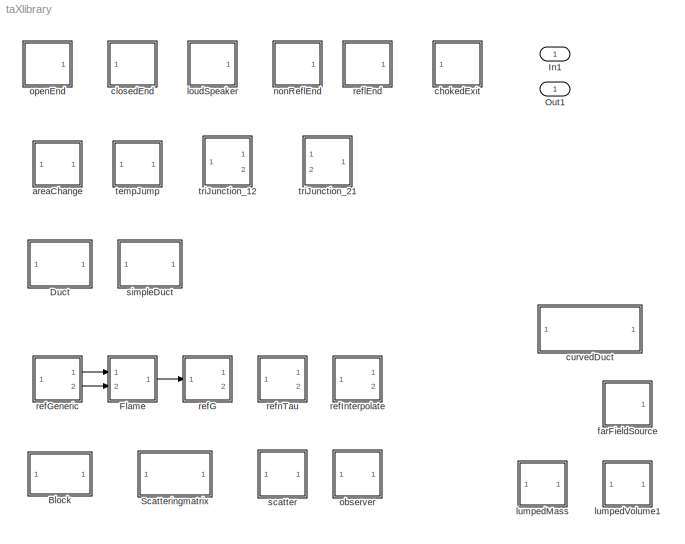
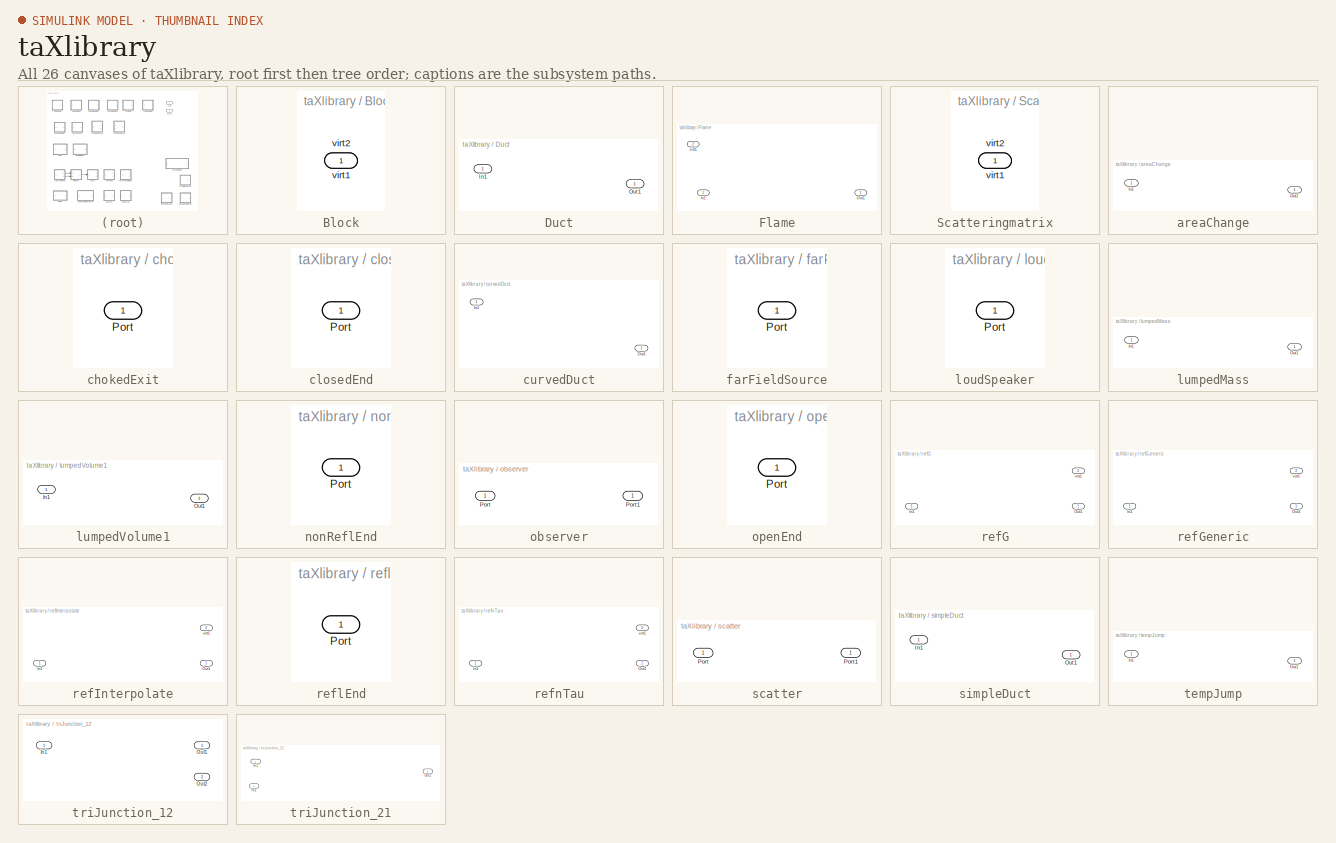
[diagram: thumbnail index - all 26 canvases of the model, root first then tree order]
MODEL taXlibrary
KIND library
BLOCK [SubSystem] Block
  Ports = [1, 1]
  RequestExecContextInheritance = off
  SID = 244
  Variant = off
BLOCK [Inport] Block/virt1
  IconDisplay = Port number
  SID = 244:55
BLOCK [Outport] Block/virt2
  IconDisplay = Port number
  SID = 244:169
BLOCK [SubSystem] Duct
  AttributesFormatString = %<l> m
  Ports = [1, 1]
  RequestExecContextInheritance = off
  SID = 238
  Variant = off
BLOCK [Inport] Duct/In1
  IconDisplay = Port number
  SID = 239
BLOCK [Outport] Duct/Out1
  IconDisplay = Port number
  SID = 240
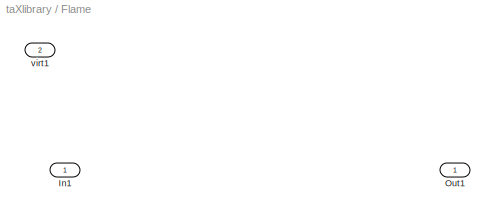
BLOCK [SubSystem] Flame
  Ports = [2, 1]
  RequestExecContextInheritance = off
  SID = 232
  Variant = off
BLOCK [Inport] Flame/In1
  IconDisplay = Port number
  SID = 232:122
BLOCK [Outport] Flame/Out1
  IconDisplay = Port number
  SID = 232:126
BLOCK [Inport] Flame/virt1
  IconDisplay = Port number
  Port = 2
  SID = 232:171
BLOCK [Inport] In1
  IconDisplay = Port number
  SID = 1
BLOCK [Outport] Out1
  IconDisplay = Port number
  SID = 74
BLOCK [SubSystem] Scatteringmatrix
  AttributesFormatString = %<modelname>
  Ports = [1, 1]
  RequestExecContextInheritance = off
  SID = 242
  Variant = off
BLOCK [Inport] Scatteringmatrix/virt1
  IconDisplay = Port number
  SID = 242:55
BLOCK [Outport] Scatteringmatrix/virt2
  IconDisplay = Port number
  SID = 242:56
BLOCK [SubSystem] areaChange
  AttributesFormatString = %<A> m²
  Ports = [1, 1]
  RequestExecContextInheritance = off
  SID = 15
  Variant = off
BLOCK [Inport] areaChange/In1
  IconDisplay = Port number
  SID = 16
BLOCK [Outport] areaChange/Out1
  IconDisplay = Port number
  SID = 17
BLOCK [SubSystem] chokedExit
  Ports = [1]
  RequestExecContextInheritance = off
  SID = 8
  Variant = off
BLOCK [Inport] chokedExit/Port
  IconDisplay = Port number
  SID = 8:35
BLOCK [SubSystem] closedEnd
  Ports = [0, 1]
  RequestExecContextInheritance = off
  SID = 10
  Variant = off
BLOCK [Outport] closedEnd/Port
  IconDisplay = Port number
  SID = 10:197
BLOCK [SubSystem] curvedDuct
  Ports = [1, 1]
  RequestExecContextInheritance = off
  SID = 11
  Variant = off
BLOCK [Inport] curvedDuct/In1
  IconDisplay = Port number
  SID = 12
BLOCK [Outport] curvedDuct/Out1
  IconDisplay = Port number
  SID = 13
BLOCK [SubSystem] farFieldSource
  AttributesFormatString = %<Amp> Pa
  Ports = [0, 1]
  RequestExecContextInheritance = off
  SID = 14
  Variant = off
BLOCK [Outport] farFieldSource/Port
  IconDisplay = Port number
  SID = 14:188
BLOCK [SubSystem] loudSpeaker
  AttributesFormatString = %<Amp> m/s
  Ports = [0, 1]
  RequestExecContextInheritance = off
  SID = 18
  Variant = off
BLOCK [Outport] loudSpeaker/Port
  IconDisplay = Port number
  SID = 18:192
BLOCK [SubSystem] lumpedMass
  AttributesFormatString = %<Leq> m
  Ports = [1, 1]
  RequestExecContextInheritance = off
  SID = 19
  Variant = off
BLOCK [Inport] lumpedMass/In1
  IconDisplay = Port number
  SID = 20
BLOCK [Outport] lumpedMass/Out1
  IconDisplay = Port number
  SID = 21
BLOCK [SubSystem] lumpedVolume1
  AttributesFormatString = %<Veq> m^3
  Ports = [1, 1]
  RequestExecContextInheritance = off
  SID = 22
  Variant = off
BLOCK [Inport] lumpedVolume1/In1
  IconDisplay = Port number
  SID = 23
BLOCK [Outport] lumpedVolume1/Out1
  IconDisplay = Port number
  SID = 24
BLOCK [SubSystem] nonReflEnd
  Ports = [0, 1]
  RequestExecContextInheritance = off
  SID = 32
  Variant = off
BLOCK [Outport] nonReflEnd/Port
  IconDisplay = Port number
  SID = 32:186
BLOCK [SubSystem] observer
  Ports = [1, 1]
  RequestExecContextInheritance = off
  SID = 36
  Variant = off
BLOCK [Inport] observer/Port
  IconDisplay = Port number
  SID = 36:184
BLOCK [Outport] observer/Port1
  IconDisplay = Port number
  SID = 36:187
BLOCK [SubSystem] openEnd
  Ports = [0, 1]
  RequestExecContextInheritance = off
  SID = 37
  Variant = off
BLOCK [Outport] openEnd/Port
  IconDisplay = Port number
  SID = 37:179
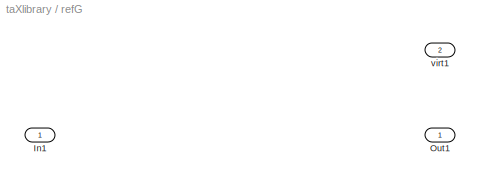
BLOCK [SubSystem] refG
  Ports = [1, 2]
  RequestExecContextInheritance = off
  SID = 245
  Variant = off
BLOCK [Inport] refG/In1
  IconDisplay = Port number
  SID = 246
BLOCK [Outport] refG/Out1
  IconDisplay = Port number
  SID = 247
BLOCK [Outport] refG/virt1
  IconDisplay = Port number
  Port = 2
  SID = 248
BLOCK [SubSystem] refGeneric
  AttributesFormatString = %<modelname>
  Ports = [1, 2]
  RequestExecContextInheritance = off
  SID = 233
  Variant = off
BLOCK [Inport] refGeneric/In1
  IconDisplay = Port number
  SID = 234
BLOCK [Outport] refGeneric/Out1
  IconDisplay = Port number
  SID = 235
BLOCK [Outport] refGeneric/virt1
  IconDisplay = Port number
  Port = 2
  SID = 236
BLOCK [SubSystem] refInterpolate
  AttributesFormatString = %<modelname>
  Ports = [1, 2]
  RequestExecContextInheritance = off
  SID = 253
  Variant = off
BLOCK [Inport] refInterpolate/In1
  IconDisplay = Port number
  SID = 254
BLOCK [Outport] refInterpolate/Out1
  IconDisplay = Port number
  SID = 255
BLOCK [Outport] refInterpolate/virt1
  IconDisplay = Port number
  Port = 2
  SID = 256
BLOCK [SubSystem] reflEnd
  AttributesFormatString = %<r>
  Ports = [0, 1]
  RequestExecContextInheritance = off
  SID = 50
  Variant = off
BLOCK [Outport] reflEnd/Port
  IconDisplay = Port number
  SID = 50:182
BLOCK [SubSystem] refnTau
  Ports = [1, 2]
  RequestExecContextInheritance = off
  SID = 249
  Variant = off
BLOCK [Inport] refnTau/In1
  IconDisplay = Port number
  SID = 250
BLOCK [Outport] refnTau/Out1
  IconDisplay = Port number
  SID = 251
BLOCK [Outport] refnTau/virt1
  IconDisplay = Port number
  Port = 2
  SID = 252
BLOCK [SubSystem] scatter
  Ports = [1, 1]
  RequestExecContextInheritance = off
  SID = 51
  Variant = off
BLOCK [Inport] scatter/Port
  IconDisplay = Port number
  SID = 51:185
BLOCK [Outport] scatter/Port1
  IconDisplay = Port number
  SID = 51:186
BLOCK [SubSystem] simpleDuct
  AttributesFormatString = %<l> m
  Ports = [1, 1]
  RequestExecContextInheritance = off
  SID = 52
  Variant = off
BLOCK [Inport] simpleDuct/In1
  IconDisplay = Port number
  SID = 53
BLOCK [Outport] simpleDuct/Out1
  IconDisplay = Port number
  SID = 54
BLOCK [SubSystem] tempJump
  Ports = [1, 1]
  RequestExecContextInheritance = off
  SID = 55
  Variant = off
BLOCK [Inport] tempJump/In1
  IconDisplay = Port number
  SID = 56
BLOCK [Outport] tempJump/Out1
  IconDisplay = Port number
  SID = 57
BLOCK [SubSystem] triJunction_12
  Ports = [1, 2]
  RequestExecContextInheritance = off
  SID = 58
  Variant = off
BLOCK [Inport] triJunction_12/In1
  IconDisplay = Port number
  SID = 59
BLOCK [Outport] triJunction_12/Out1
  IconDisplay = Port number
  SID = 65
BLOCK [Outport] triJunction_12/Out2
  IconDisplay = Port number
  Port = 2
  SID = 66
BLOCK [SubSystem] triJunction_21
  Ports = [2, 1]
  RequestExecContextInheritance = off
  SID = 67
  Variant = off
BLOCK [Inport] triJunction_21/In1
  IconDisplay = Port number
  SID = 68
BLOCK [Inport] triJunction_21/In2
  IconDisplay = Port number
  Port = 2
  SID = 69
BLOCK [Outport] triJunction_21/Out1
  IconDisplay = Port number
  SID = 73
LINE Flame:1 -> refG:1
LINE refGeneric:1 -> Flame:1
LINE refGeneric:2 -> Flame:2
